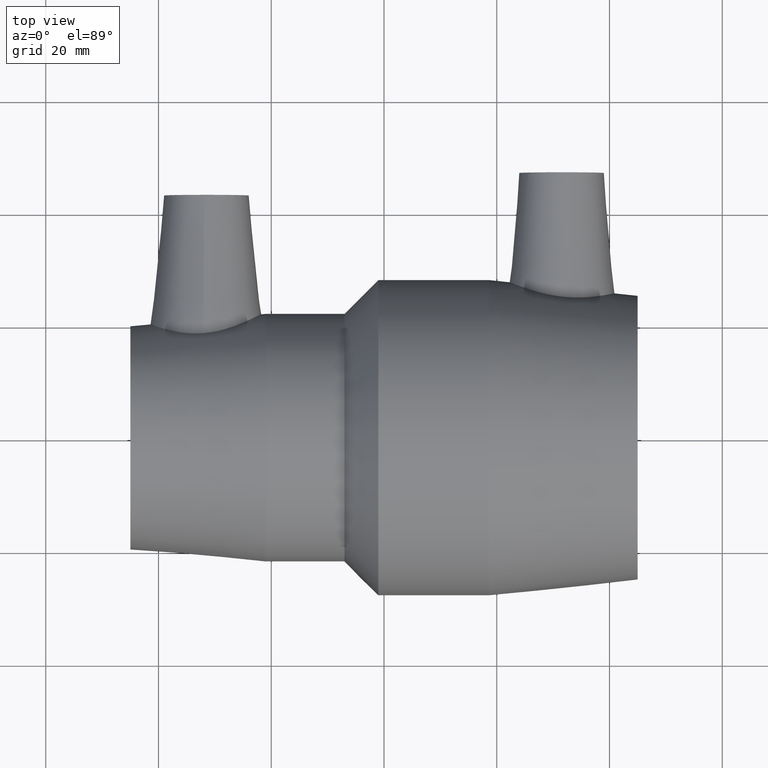
[diagram: clean part render]
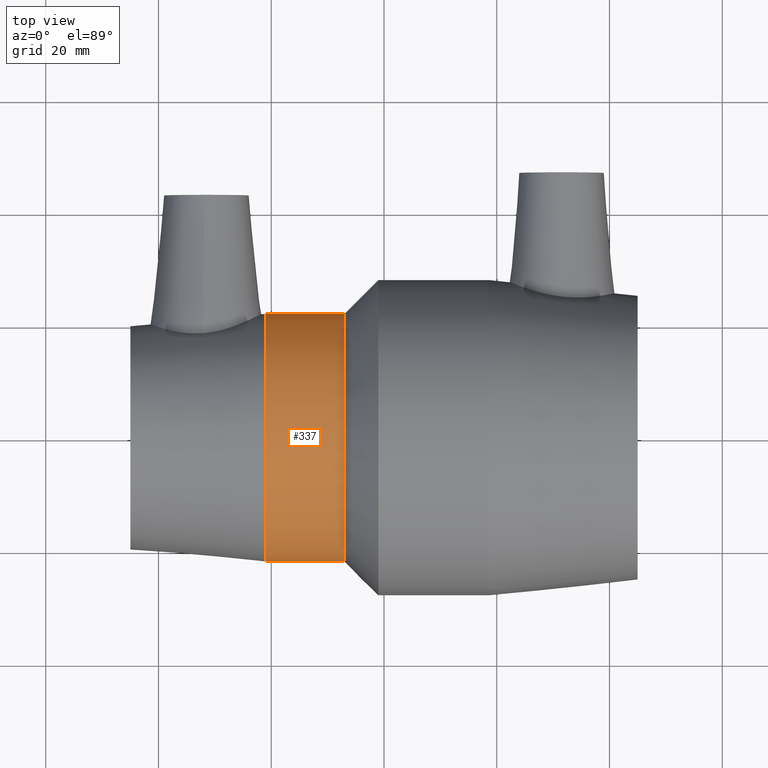
[diagram: same view with one face highlighted and labeled with its STEP entity id]
A machine part, top view. The second image highlights one B-rep face of the part: STEP entity #337.
In plain terms, the highlighted cylindrical surface (bore or boss wall) has radius 22 mm, axis along (1, 0, 0).
Its self-contained STEP definition (entity closure, byte-faithful):
#35=FACE_BOUND('',#121,.T.);
#60=CYLINDRICAL_SURFACE('',#380,22.);
#79=FACE_OUTER_BOUND('',#120,.T.);
#120=EDGE_LOOP('',(#273));
#121=EDGE_LOOP('',(#274));
#170=CIRCLE('',#381,22.);
#171=CIRCLE('',#382,22.);
#201=VERTEX_POINT('',#644);
#202=VERTEX_POINT('',#646);
#232=EDGE_CURVE('',#201,#201,#170,.T.);
#233=EDGE_CURVE('',#202,#202,#171,.T.);
#273=ORIENTED_EDGE('',*,*,#232,.F.);
#274=ORIENTED_EDGE('',*,*,#233,.T.);
#337=ADVANCED_FACE('',(#79,#35),#60,.T.);
#380=AXIS2_PLACEMENT_3D('',#643,#464,#465);
#381=AXIS2_PLACEMENT_3D('',#645,#466,#467);
#382=AXIS2_PLACEMENT_3D('',#647,#468,#469);
#464=DIRECTION('center_axis',(1.,1.83697019872103E-16,0.));
#465=DIRECTION('ref_axis',(-2.13961620591946E-16,1.,0.));
#466=DIRECTION('center_axis',(1.,1.83697019872103E-16,0.));
#467=DIRECTION('ref_axis',(0.,0.,-1.));
#468=DIRECTION('center_axis',(1.,1.83697019872103E-16,0.));
#469=DIRECTION('ref_axis',(0.,0.,-1.));
#643=CARTESIAN_POINT('Origin',(-14.,5.69460761603519E-15,0.));
#644=CARTESIAN_POINT('',(-7.,22.,0.));
#645=CARTESIAN_POINT('Origin',(-6.99999999999999,6.98048675513991E-15,0.));
#646=CARTESIAN_POINT('',(-21.,22.,0.));
#647=CARTESIAN_POINT('Origin',(-21.,4.40872847693047E-15,0.));